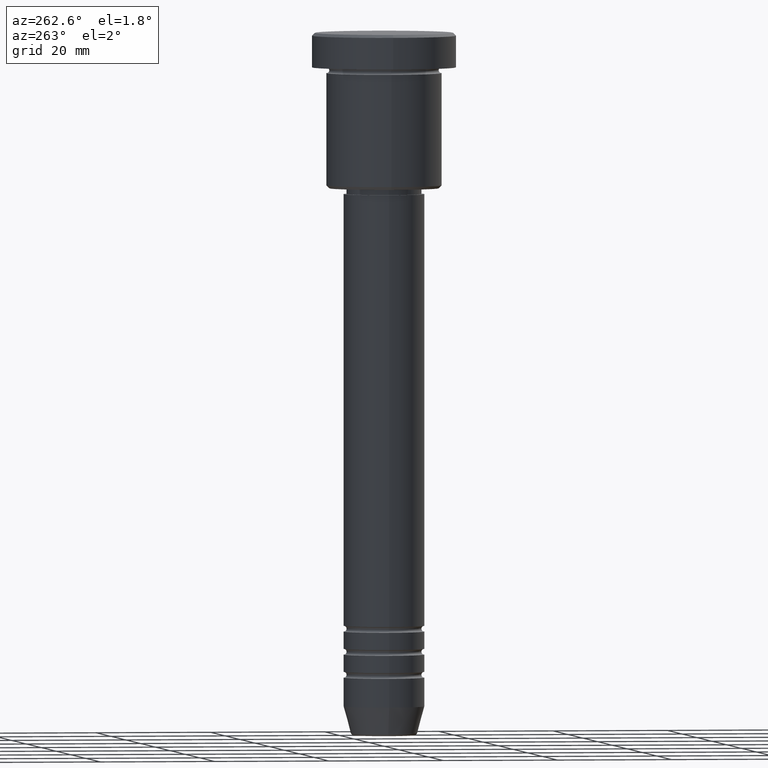
[diagram: clean part render]
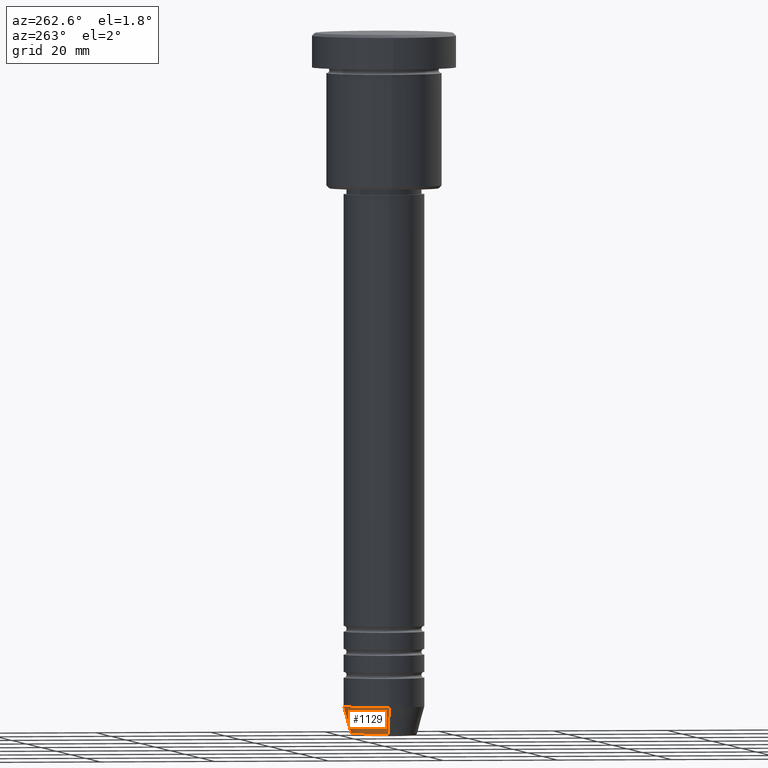
[diagram: same view with one face highlighted and labeled with its STEP entity id]
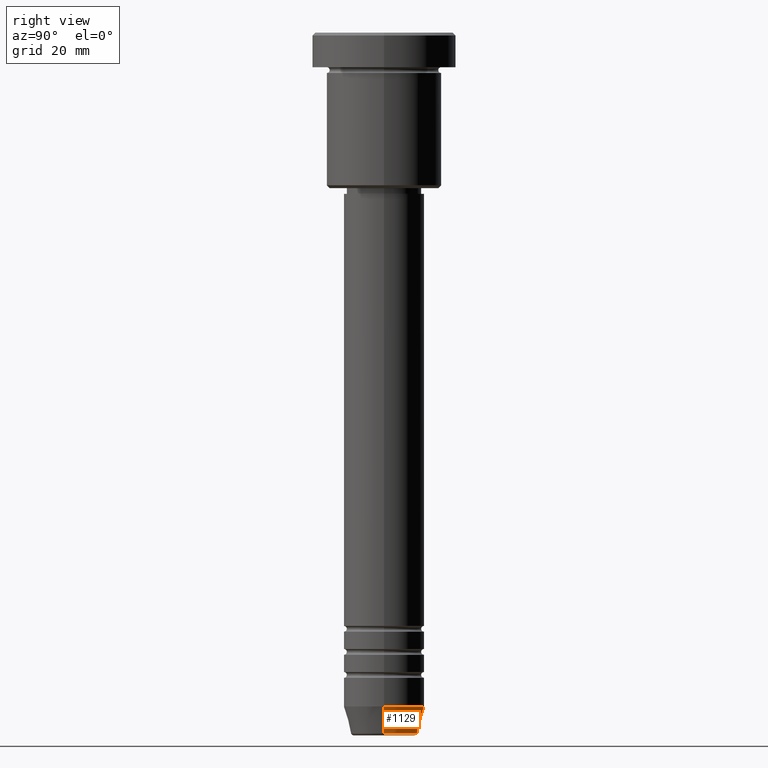
[diagram: same view with one face highlighted and labeled with its STEP entity id]
A machine part, auxiliary view. The second image highlights one B-rep face of the part: STEP entity #1129.
A second angle (right view) of the same face is appended — the face is thin or edge-on in the first view.
In plain terms, the highlighted conical surface has half-angle 15 deg.
Its self-contained STEP definition (entity closure, byte-faithful):
#19 = EDGE_CURVE ( 'NONE', #1182, #552, #351, .T. ) ;
#36 = CARTESIAN_POINT ( 'NONE',  ( -5.759553456999443988, 7.812973149831957689E-16, -121.6294095225512422 ) ) ;
#92 = VECTOR ( 'NONE', #148, 1000.000000000000000 ) ;
#93 = VERTEX_POINT ( 'NONE', #560 ) ;
#113 = DIRECTION ( 'NONE',  ( -0.000000000000000000, -0.000000000000000000, 1.000000000000000000 ) ) ;
#148 = DIRECTION ( 'NONE',  ( -0.2588190451025213501, 3.169619151431772337E-17, 0.9659258262890680902 ) ) ;
#171 = LINE ( 'NONE', #532, #92 ) ;
#185 = ORIENTED_EDGE ( 'NONE', *, *, #952, .T. ) ;
#196 = CIRCLE ( 'NONE', #277, 5.759553456999443988 ) ;
#277 = AXIS2_PLACEMENT_3D ( 'NONE', #385, #760, #856 ) ;
#314 = ORIENTED_EDGE ( 'NONE', *, *, #824, .T. ) ;
#318 = ORIENTED_EDGE ( 'NONE', *, *, #846, .F. ) ;
#351 = CIRCLE ( 'NONE', #645, 7.000000000000000000 ) ;
#370 = VECTOR ( 'NONE', #709, 1000.000000000000000 ) ;
#383 = CONICAL_SURFACE ( 'NONE', #927, 7.000000000000000000, 0.2617993877991500740 ) ;
#385 = CARTESIAN_POINT ( 'NONE',  ( 0.000000000000000000, 0.000000000000000000, -121.6294095225512422 ) ) ;
#532 = CARTESIAN_POINT ( 'NONE',  ( -7.000000000000000000, 8.572527594031473190E-16, -117.0000000000000000 ) ) ;
#552 = VERTEX_POINT ( 'NONE', #855 ) ;
#556 = VERTEX_POINT ( 'NONE', #36 ) ;
#560 = CARTESIAN_POINT ( 'NONE',  ( 5.759553456999443988, 0.000000000000000000, -121.6294095225512422 ) ) ;
#578 = CARTESIAN_POINT ( 'NONE',  ( 0.000000000000000000, 0.000000000000000000, -117.0000000000000000 ) ) ;
#595 = LINE ( 'NONE', #793, #370 ) ;
#645 = AXIS2_PLACEMENT_3D ( 'NONE', #578, #113, #853 ) ;
#685 = CARTESIAN_POINT ( 'NONE',  ( 0.000000000000000000, 0.000000000000000000, -117.0000000000000000 ) ) ;
#709 = DIRECTION ( 'NONE',  ( 0.2588190451025213501, 0.000000000000000000, 0.9659258262890680902 ) ) ;
#711 = EDGE_LOOP ( 'NONE', ( #314, #185, #1085, #318 ) ) ;
#760 = DIRECTION ( 'NONE',  ( -0.000000000000000000, -0.000000000000000000, 1.000000000000000000 ) ) ;
#793 = CARTESIAN_POINT ( 'NONE',  ( 7.000000000000000000, 0.000000000000000000, -117.0000000000000000 ) ) ;
#824 = EDGE_CURVE ( 'NONE', #93, #556, #196, .T. ) ;
#844 = FACE_OUTER_BOUND ( 'NONE', #711, .T. ) ;
#846 = EDGE_CURVE ( 'NONE', #93, #1182, #595, .T. ) ;
#853 = DIRECTION ( 'NONE',  ( 1.000000000000000000, 0.000000000000000000, 0.000000000000000000 ) ) ;
#855 = CARTESIAN_POINT ( 'NONE',  ( -7.000000000000000000, 8.572527594031473190E-16, -117.0000000000000000 ) ) ;
#856 = DIRECTION ( 'NONE',  ( 1.000000000000000000, 0.000000000000000000, 0.000000000000000000 ) ) ;
#927 = AXIS2_PLACEMENT_3D ( 'NONE', #685, #1015, #1041 ) ;
#937 = CARTESIAN_POINT ( 'NONE',  ( 7.000000000000000000, 0.000000000000000000, -117.0000000000000000 ) ) ;
#952 = EDGE_CURVE ( 'NONE', #556, #552, #171, .T. ) ;
#1015 = DIRECTION ( 'NONE',  ( -0.000000000000000000, -0.000000000000000000, 1.000000000000000000 ) ) ;
#1041 = DIRECTION ( 'NONE',  ( 1.000000000000000000, 0.000000000000000000, 0.000000000000000000 ) ) ;
#1085 = ORIENTED_EDGE ( 'NONE', *, *, #19, .F. ) ;
#1129 = ADVANCED_FACE ( 'NONE', ( #844 ), #383, .T. ) ;
#1182 = VERTEX_POINT ( 'NONE', #937 ) ;